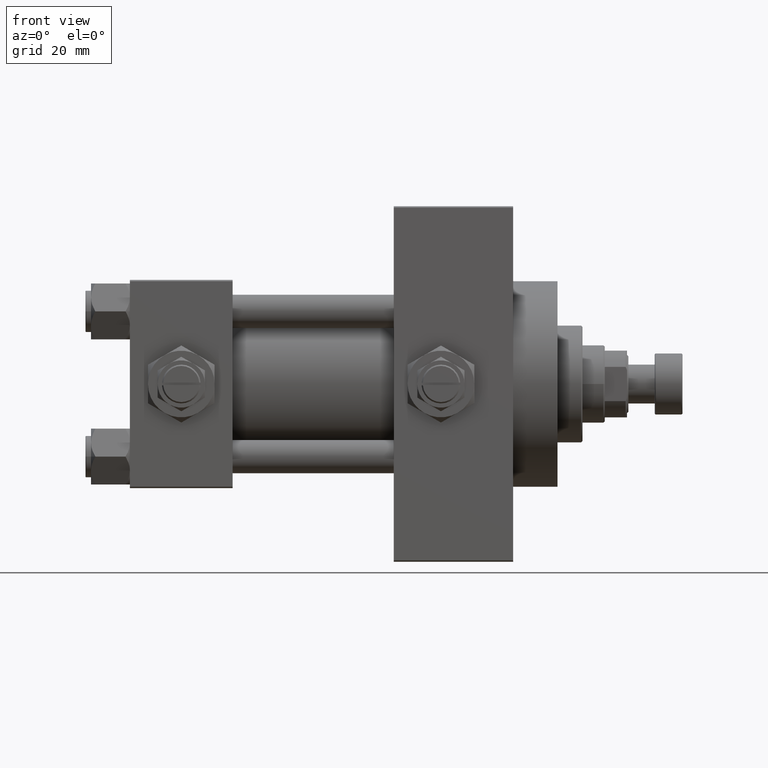
[diagram: clean part render]
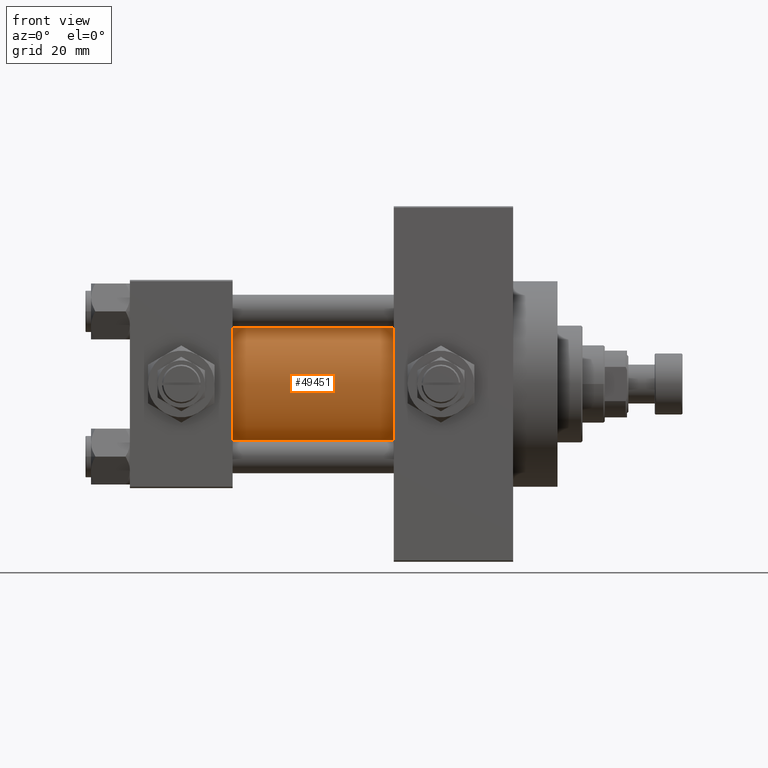
[diagram: same view with one face highlighted and labeled with its STEP entity id]
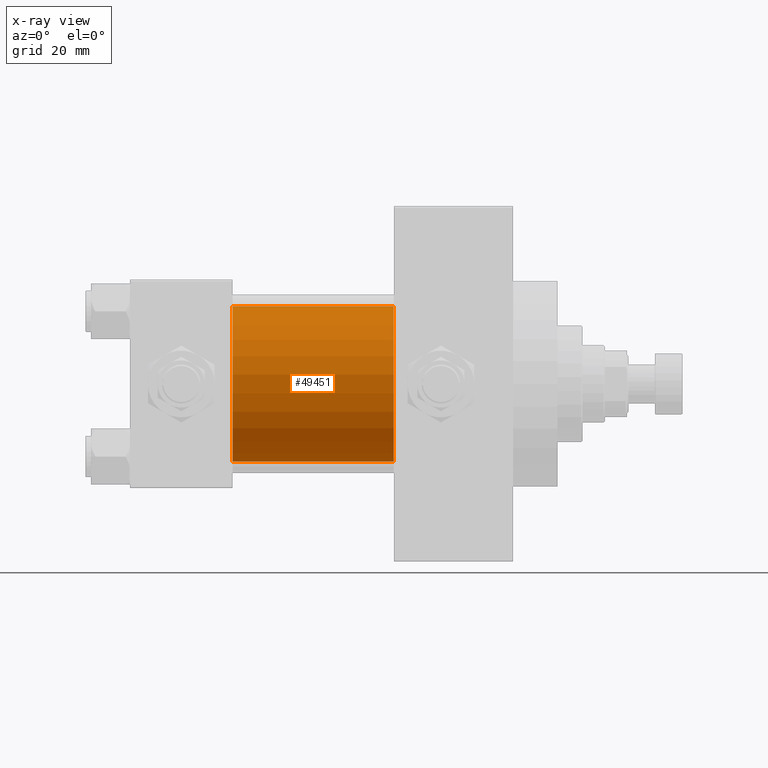
[diagram: x-ray of the same camera — body ghosted, the highlighted face saturated]
A machine part, front view. The second image highlights one B-rep face of the part: STEP entity #49451.
The next image is the same camera in x-ray: the body ghosted, the highlighted face saturated — about 2% of this face is hidden behind the body in this view.
In plain terms, the highlighted cylindrical surface (partial cylindrical patch) has radius 28 mm, axis along (-1, -0, -0).
Its self-contained STEP definition (entity closure, byte-faithful):
#1749 = DIRECTION ( 'NONE',  ( 1.000000000000000000, -0.000000000000000000, 0.000000000000000000 ) ) ;
#1945 = ORIENTED_EDGE ( 'NONE', *, *, #17654, .T. ) ;
#3904 = CARTESIAN_POINT ( 'NONE',  ( 95.00000000000000000, 8.269258236473776482E-16, -28.00000000000000000 ) ) ;
#4070 = AXIS2_PLACEMENT_3D ( 'NONE', #36215, #1749, #28660 ) ;
#7893 = AXIS2_PLACEMENT_3D ( 'NONE', #39438, #23831, #39682 ) ;
#8021 = FACE_OUTER_BOUND ( 'NONE', #11206, .T. ) ;
#9511 = EDGE_CURVE ( 'NONE', #24120, #21381, #11458, .T. ) ;
#9829 = VERTEX_POINT ( 'NONE', #41851 ) ;
#9878 = ORIENTED_EDGE ( 'NONE', *, *, #22767, .F. ) ;
#10655 = AXIS2_PLACEMENT_3D ( 'NONE', #39565, #20199, #31300 ) ;
#11206 = EDGE_LOOP ( 'NONE', ( #40516, #9878, #1945, #29006 ) ) ;
#11458 = LINE ( 'NONE', #3904, #32086 ) ;
#12797 = CARTESIAN_POINT ( 'NONE',  ( 37.00000000000000000, 8.269258236473776482E-16, -28.00000000000000000 ) ) ;
#17654 = EDGE_CURVE ( 'NONE', #9829, #31445, #47516, .T. ) ;
#18757 = DIRECTION ( 'NONE',  ( -1.000000000000000000, -0.000000000000000000, -0.000000000000000000 ) ) ;
#19464 = EDGE_CURVE ( 'NONE', #31445, #21381, #21729, .T. ) ;
#20199 = DIRECTION ( 'NONE',  ( 1.000000000000000000, 0.000000000000000000, 0.000000000000000000 ) ) ;
#21381 = VERTEX_POINT ( 'NONE', #12797 ) ;
#21729 = CIRCLE ( 'NONE', #4070, 28.00000000000000000 ) ;
#22767 = EDGE_CURVE ( 'NONE', #9829, #24120, #31540, .T. ) ;
#23595 = CYLINDRICAL_SURFACE ( 'NONE', #7893, 28.00000000000000000 ) ;
#23831 = DIRECTION ( 'NONE',  ( -1.000000000000000000, -0.000000000000000000, -0.000000000000000000 ) ) ;
#24120 = VERTEX_POINT ( 'NONE', #27696 ) ;
#24876 = DIRECTION ( 'NONE',  ( -1.000000000000000000, -0.000000000000000000, -0.000000000000000000 ) ) ;
#27696 = CARTESIAN_POINT ( 'NONE',  ( 95.00000000000000000, 8.269258236473776482E-16, -28.00000000000000000 ) ) ;
#28113 = VECTOR ( 'NONE', #24876, 1000.000000000000000 ) ;
#28660 = DIRECTION ( 'NONE',  ( 0.000000000000000000, 0.000000000000000000, 1.000000000000000000 ) ) ;
#29006 = ORIENTED_EDGE ( 'NONE', *, *, #19464, .T. ) ;
#31300 = DIRECTION ( 'NONE',  ( 0.000000000000000000, 0.000000000000000000, -1.000000000000000000 ) ) ;
#31445 = VERTEX_POINT ( 'NONE', #41597 ) ;
#31540 = CIRCLE ( 'NONE', #10655, 28.00000000000000000 ) ;
#31926 = CARTESIAN_POINT ( 'NONE',  ( 95.00000000000000000, -2.602085213965210642E-15, 28.00000000000000000 ) ) ;
#32086 = VECTOR ( 'NONE', #18757, 1000.000000000000000 ) ;
#36215 = CARTESIAN_POINT ( 'NONE',  ( 37.00000000000000000, -2.602085213965210642E-15, 0.000000000000000000 ) ) ;
#39438 = CARTESIAN_POINT ( 'NONE',  ( 95.00000000000000000, -2.602085213965210642E-15, 0.000000000000000000 ) ) ;
#39565 = CARTESIAN_POINT ( 'NONE',  ( 95.00000000000000000, -2.602085213965210642E-15, 0.000000000000000000 ) ) ;
#39682 = DIRECTION ( 'NONE',  ( 0.000000000000000000, 0.000000000000000000, 1.000000000000000000 ) ) ;
#40516 = ORIENTED_EDGE ( 'NONE', *, *, #9511, .F. ) ;
#41597 = CARTESIAN_POINT ( 'NONE',  ( 37.00000000000000000, -2.602085213965210642E-15, 28.00000000000000000 ) ) ;
#41851 = CARTESIAN_POINT ( 'NONE',  ( 95.00000000000000000, -2.602085213965210642E-15, 28.00000000000000000 ) ) ;
#47516 = LINE ( 'NONE', #31926, #28113 ) ;
#49451 = ADVANCED_FACE ( 'NONE', ( #8021 ), #23595, .T. ) ;